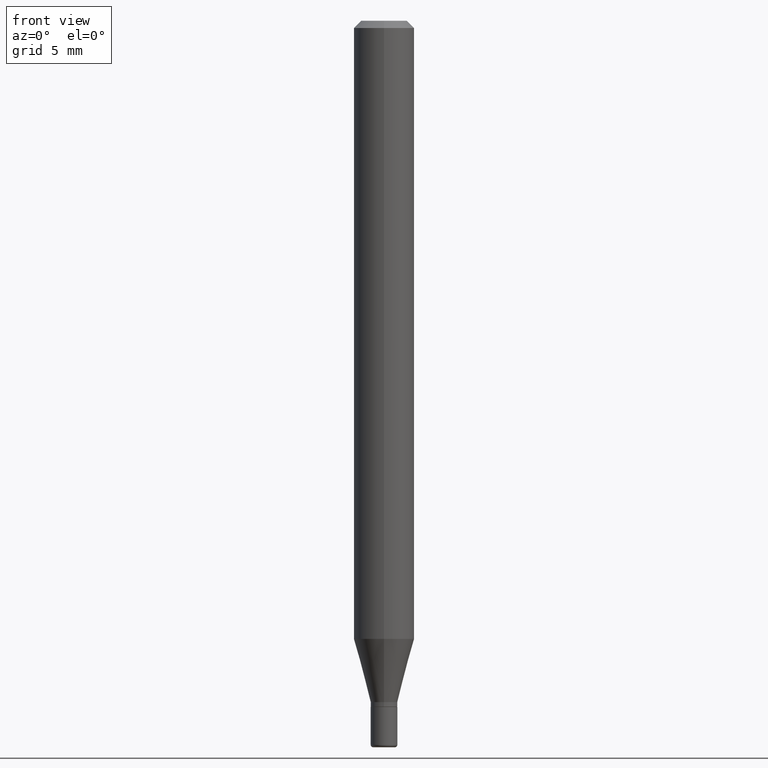
[diagram: clean part render]
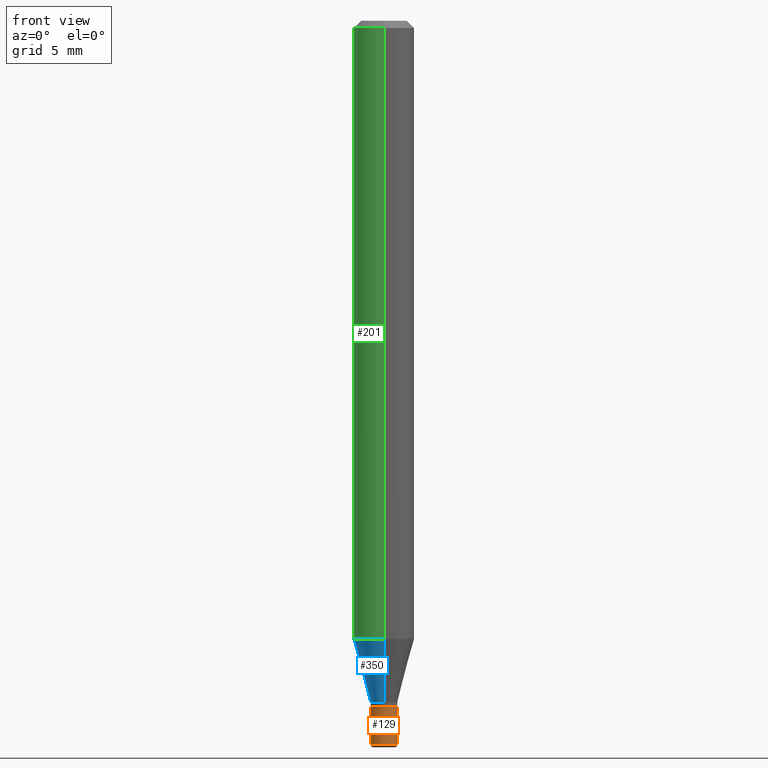
[diagram: same view with three faces highlighted in distinct colors, each labeled with its STEP entity id]
A machine part, front view with three faces highlighted in distinct colors.
Their STEP definitions:

[orange] entity #129 — the highlighted cylindrical surface (edge-blend (fillet) strip) has radius 0.6985 mm, axis along (-0, 0, 1).
#12 = VECTOR ( 'NONE', #203, 39.37007874015748143 ) ;
#28 = EDGE_LOOP ( 'NONE', ( #469, #120, #59, #100 ) ) ;
#42 = CARTESIAN_POINT ( 'NONE',  ( 3.655975865246778562E-29, -5.219764601570502352E-15, -1.494999999999999662 ) ) ;
#59 = ORIENTED_EDGE ( 'NONE', *, *, #447, .T. ) ;
#68 = LINE ( 'NONE', #437, #77 ) ;
#77 = VECTOR ( 'NONE', #517, 39.37007874015748143 ) ;
#100 = ORIENTED_EDGE ( 'NONE', *, *, #347, .F. ) ;
#108 = VERTEX_POINT ( 'NONE', #490 ) ;
#114 = CARTESIAN_POINT ( 'NONE',  ( 3.465229298364339647E-29, -4.947429057140738329E-15, -1.417000000000000259 ) ) ;
#120 = ORIENTED_EDGE ( 'NONE', *, *, #500, .T. ) ;
#122 = DIRECTION ( 'NONE',  ( -2.445468806185136597E-29, 3.491481338843145583E-15, 1.000000000000000000 ) ) ;
#129 = ADVANCED_FACE ( 'NONE', ( #301 ), #415, .T. ) ;
#143 = CARTESIAN_POINT ( 'NONE',  ( -0.02750000000000000014, -4.888197577021592222E-15, -1.417000000000000259 ) ) ;
#161 = DIRECTION ( 'NONE',  ( 1.000000000000000000, -6.982962677686279332E-15, 0.000000000000000000 ) ) ;
#175 = VERTEX_POINT ( 'NONE', #143 ) ;
#193 = AXIS2_PLACEMENT_3D ( 'NONE', #42, #369, #255 ) ;
#199 = CARTESIAN_POINT ( 'NONE',  ( 0.02750000000000000014, -5.139460530777110821E-15, -1.417000000000000259 ) ) ;
#203 = DIRECTION ( 'NONE',  ( -2.445468806185136877E-29, 3.491481338843145188E-15, 1.000000000000000000 ) ) ;
#250 = LINE ( 'NONE', #401, #12 ) ;
#255 = DIRECTION ( 'NONE',  ( 1.000000000000000000, -6.982962677686270655E-15, 0.000000000000000000 ) ) ;
#286 = AXIS2_PLACEMENT_3D ( 'NONE', #114, #395, #161 ) ;
#295 = CIRCLE ( 'NONE', #193, 0.02750000000000017708 ) ;
#296 = EDGE_CURVE ( 'NONE', #108, #175, #68, .T. ) ;
#301 = FACE_OUTER_BOUND ( 'NONE', #28, .T. ) ;
#329 = VERTEX_POINT ( 'NONE', #199 ) ;
#347 = EDGE_CURVE ( 'NONE', #175, #329, #412, .T. ) ;
#364 = CARTESIAN_POINT ( 'NONE',  ( 0.02750000000000017708, -5.411796075206875633E-15, -1.494999999999999662 ) ) ;
#369 = DIRECTION ( 'NONE',  ( -2.445468806185136597E-29, 3.491481338843145583E-15, 1.000000000000000000 ) ) ;
#376 = AXIS2_PLACEMENT_3D ( 'NONE', #483, #122, #449 ) ;
#389 = VERTEX_POINT ( 'NONE', #364 ) ;
#395 = DIRECTION ( 'NONE',  ( -2.445468806185136597E-29, 3.491481338843145583E-15, 1.000000000000000000 ) ) ;
#401 = CARTESIAN_POINT ( 'NONE',  ( 0.02750000000000009034, -1.920314736363729607E-16, 1.340948613343886617E-30 ) ) ;
#412 = CIRCLE ( 'NONE', #286, 0.02750000000000000014 ) ;
#415 = CYLINDRICAL_SURFACE ( 'NONE', #376, 0.02750000000000009034 ) ;
#437 = CARTESIAN_POINT ( 'NONE',  ( -0.02750000000000009034, 1.953992523340281931E-16, -1.352707149820103385E-30 ) ) ;
#447 = EDGE_CURVE ( 'NONE', #389, #329, #250, .T. ) ;
#449 = DIRECTION ( 'NONE',  ( 1.000000000000000000, -6.982962677686266711E-15, 4.876176775795935232E-29 ) ) ;
#469 = ORIENTED_EDGE ( 'NONE', *, *, #296, .F. ) ;
#483 = CARTESIAN_POINT ( 'NONE',  ( 0.000000000000000000, 0.000000000000000000, 0.000000000000000000 ) ) ;
#490 = CARTESIAN_POINT ( 'NONE',  ( -0.02750000000000017708, -4.888197577021591433E-15, -1.494999999999999662 ) ) ;
#500 = EDGE_CURVE ( 'NONE', #108, #389, #295, .T. ) ;
#517 = DIRECTION ( 'NONE',  ( -2.445468806185136877E-29, 3.491481338843145188E-15, 1.000000000000000000 ) ) ;

[blue] entity #350 — the highlighted conical surface has half-angle 15 deg.
#5 = ORIENTED_EDGE ( 'NONE', *, *, #496, .F. ) ;
#7 = DIRECTION ( 'NONE',  ( -6.982962677686265922E-15, -1.000000000000000000, 0.000000000000000000 ) ) ;
#25 = VERTEX_POINT ( 'NONE', #324 ) ;
#35 = AXIS2_PLACEMENT_3D ( 'NONE', #239, #37, #107 ) ;
#36 = ORIENTED_EDGE ( 'NONE', *, *, #427, .T. ) ;
#37 = DIRECTION ( 'NONE',  ( -2.445430594000756604E-29, 3.491536060866079986E-15, 1.000000000000000000 ) ) ;
#46 = CARTESIAN_POINT ( 'NONE',  ( 1.953992523340626318E-16, 0.02749999999999518802, -1.407000000000000250 ) ) ;
#48 = CARTESIAN_POINT ( 'NONE',  ( 3.440720845759065849E-29, -4.912591237638575836E-15, -1.407000000000000250 ) ) ;
#72 = EDGE_LOOP ( 'NONE', ( #5, #118, #36, #276 ) ) ;
#75 = CIRCLE ( 'NONE', #192, 0.02750000000000010075 ) ;
#107 = DIRECTION ( 'NONE',  ( -6.982962677686265922E-15, -1.000000000000000000, 0.000000000000000000 ) ) ;
#109 = EDGE_CURVE ( 'NONE', #338, #351, #75, .T. ) ;
#116 = LINE ( 'NONE', #361, #125 ) ;
#118 = ORIENTED_EDGE ( 'NONE', *, *, #109, .T. ) ;
#125 = VECTOR ( 'NONE', #280, 39.37007874015748854 ) ;
#132 = VECTOR ( 'NONE', #214, 39.37007874015748143 ) ;
#151 = FACE_OUTER_BOUND ( 'NONE', #72, .T. ) ;
#165 = LINE ( 'NONE', #46, #132 ) ;
#192 = AXIS2_PLACEMENT_3D ( 'NONE', #48, #410, #7 ) ;
#196 = CARTESIAN_POINT ( 'NONE',  ( 3.121294352947271475E-29, -4.456520588492188599E-15, -1.276378221735090079 ) ) ;
#205 = DIRECTION ( 'NONE',  ( -6.982962677686265922E-15, -1.000000000000000000, 4.370956789862821150E-15 ) ) ;
#214 = DIRECTION ( 'NONE',  ( 1.839019923739596371E-15, 0.2588190451025244032, 0.9659258262890673130 ) ) ;
#239 = CARTESIAN_POINT ( 'NONE',  ( 3.440720845759065849E-29, -4.912591237638575836E-15, -1.407000000000000250 ) ) ;
#243 = CARTESIAN_POINT ( 'NONE',  ( 3.197442310920783026E-16, 0.02749999999999518802, -1.407000000000000250 ) ) ;
#266 = VERTEX_POINT ( 'NONE', #273 ) ;
#273 = CARTESIAN_POINT ( 'NONE',  ( -4.364351673553605587E-16, -0.06250000000000449640, -1.276378221735089857 ) ) ;
#276 = ORIENTED_EDGE ( 'NONE', *, *, #383, .F. ) ;
#280 = DIRECTION ( 'NONE',  ( -1.807323732225326195E-15, -0.2588190451025176309, 0.9659258262890690894 ) ) ;
#300 = CONICAL_SURFACE ( 'NONE', #35, 0.02750000000000010075, 0.2617993877991496854 ) ;
#323 = CARTESIAN_POINT ( 'NONE',  ( -1.920314736363385959E-16, -0.02750000000000501349, -1.407000000000000250 ) ) ;
#324 = CARTESIAN_POINT ( 'NONE',  ( 4.440892098500935790E-16, 0.06249999999999551747, -1.276378221735090301 ) ) ;
#328 = DIRECTION ( 'NONE',  ( -2.445430594000756604E-29, 3.491536060866079986E-15, 1.000000000000000000 ) ) ;
#334 = CIRCLE ( 'NONE', #367, 0.06250000000000000000 ) ;
#338 = VERTEX_POINT ( 'NONE', #243 ) ;
#350 = ADVANCED_FACE ( 'NONE', ( #151 ), #300, .T. ) ;
#351 = VERTEX_POINT ( 'NONE', #323 ) ;
#361 = CARTESIAN_POINT ( 'NONE',  ( -1.920314736363385959E-16, -0.02750000000000501349, -1.407000000000000250 ) ) ;
#367 = AXIS2_PLACEMENT_3D ( 'NONE', #196, #328, #205 ) ;
#383 = EDGE_CURVE ( 'NONE', #25, #266, #334, .T. ) ;
#410 = DIRECTION ( 'NONE',  ( -2.445430594000756604E-29, 3.491536060866079986E-15, 1.000000000000000000 ) ) ;
#427 = EDGE_CURVE ( 'NONE', #351, #266, #116, .T. ) ;
#496 = EDGE_CURVE ( 'NONE', #338, #25, #165, .T. ) ;

[green] entity #201 — the highlighted cylindrical surface (edge-blend (fillet) strip) has radius 1.5875 mm, axis along (-0, 0, 1).
#23 = EDGE_LOOP ( 'NONE', ( #450, #200, #353, #420 ) ) ;
#25 = VERTEX_POINT ( 'NONE', #324 ) ;
#53 = CARTESIAN_POINT ( 'NONE',  ( 0.000000000000000000, 0.000000000000000000, 0.000000000000000000 ) ) ;
#54 = DIRECTION ( 'NONE',  ( -6.982962677686265922E-15, -1.000000000000000000, 3.491536060866079986E-15 ) ) ;
#67 = VECTOR ( 'NONE', #208, 39.37007874015748143 ) ;
#95 = FACE_OUTER_BOUND ( 'NONE', #23, .T. ) ;
#99 = CARTESIAN_POINT ( 'NONE',  ( -4.364351673553916201E-16, -0.06250000000000000000, 2.182210038041299992E-16 ) ) ;
#101 = VECTOR ( 'NONE', #267, 39.37007874015748143 ) ;
#133 = DIRECTION ( 'NONE',  ( -2.445430594000756604E-29, 3.491536060866079986E-15, 1.000000000000000000 ) ) ;
#141 = AXIS2_PLACEMENT_3D ( 'NONE', #53, #133, #54 ) ;
#176 = DIRECTION ( 'NONE',  ( -2.445430594000756604E-29, 3.491536060866079986E-15, 1.000000000000000000 ) ) ;
#195 = VERTEX_POINT ( 'NONE', #418 ) ;
#196 = CARTESIAN_POINT ( 'NONE',  ( 3.121294352947271475E-29, -4.456520588492188599E-15, -1.276378221735090079 ) ) ;
#200 = ORIENTED_EDGE ( 'NONE', *, *, #383, .T. ) ;
#201 = ADVANCED_FACE ( 'NONE', ( #95 ), #340, .T. ) ;
#205 = DIRECTION ( 'NONE',  ( -6.982962677686265922E-15, -1.000000000000000000, 4.370956789862821150E-15 ) ) ;
#208 = DIRECTION ( 'NONE',  ( -2.445430594000756604E-29, 3.491536060866079986E-15, 1.000000000000000000 ) ) ;
#209 = EDGE_CURVE ( 'NONE', #195, #502, #388, .T. ) ;
#222 = DIRECTION ( 'NONE',  ( -6.982962677686265922E-15, -1.000000000000000000, 3.483106191921935554E-15 ) ) ;
#238 = EDGE_CURVE ( 'NONE', #266, #502, #460, .T. ) ;
#245 = AXIS2_PLACEMENT_3D ( 'NONE', #302, #176, #222 ) ;
#252 = CARTESIAN_POINT ( 'NONE',  ( -4.364351673553912750E-16, -0.06250000000000005551, -0.01499999999999948597 ) ) ;
#266 = VERTEX_POINT ( 'NONE', #273 ) ;
#267 = DIRECTION ( 'NONE',  ( -2.445430594000756604E-29, 3.491536060866079986E-15, 1.000000000000000000 ) ) ;
#273 = CARTESIAN_POINT ( 'NONE',  ( -4.364351673553605587E-16, -0.06250000000000449640, -1.276378221735089857 ) ) ;
#282 = LINE ( 'NONE', #443, #67 ) ;
#293 = EDGE_CURVE ( 'NONE', #25, #195, #282, .T. ) ;
#302 = CARTESIAN_POINT ( 'NONE',  ( 3.668145891001062423E-31, -5.237304091299016762E-17, -0.01499999999999970281 ) ) ;
#324 = CARTESIAN_POINT ( 'NONE',  ( 4.440892098500935790E-16, 0.06249999999999551747, -1.276378221735090301 ) ) ;
#328 = DIRECTION ( 'NONE',  ( -2.445430594000756604E-29, 3.491536060866079986E-15, 1.000000000000000000 ) ) ;
#334 = CIRCLE ( 'NONE', #367, 0.06250000000000000000 ) ;
#340 = CYLINDRICAL_SURFACE ( 'NONE', #141, 0.06250000000000000000 ) ;
#353 = ORIENTED_EDGE ( 'NONE', *, *, #238, .T. ) ;
#367 = AXIS2_PLACEMENT_3D ( 'NONE', #196, #328, #205 ) ;
#383 = EDGE_CURVE ( 'NONE', #25, #266, #334, .T. ) ;
#388 = CIRCLE ( 'NONE', #245, 0.06250000000000000000 ) ;
#418 = CARTESIAN_POINT ( 'NONE',  ( 4.440892098500940720E-16, 0.06249999999999995143, -0.01499999999999992138 ) ) ;
#420 = ORIENTED_EDGE ( 'NONE', *, *, #209, .F. ) ;
#443 = CARTESIAN_POINT ( 'NONE',  ( 4.440892098500625669E-16, 0.06250000000000000000, -2.182210038041299992E-16 ) ) ;
#450 = ORIENTED_EDGE ( 'NONE', *, *, #293, .F. ) ;
#460 = LINE ( 'NONE', #99, #101 ) ;
#502 = VERTEX_POINT ( 'NONE', #252 ) ;